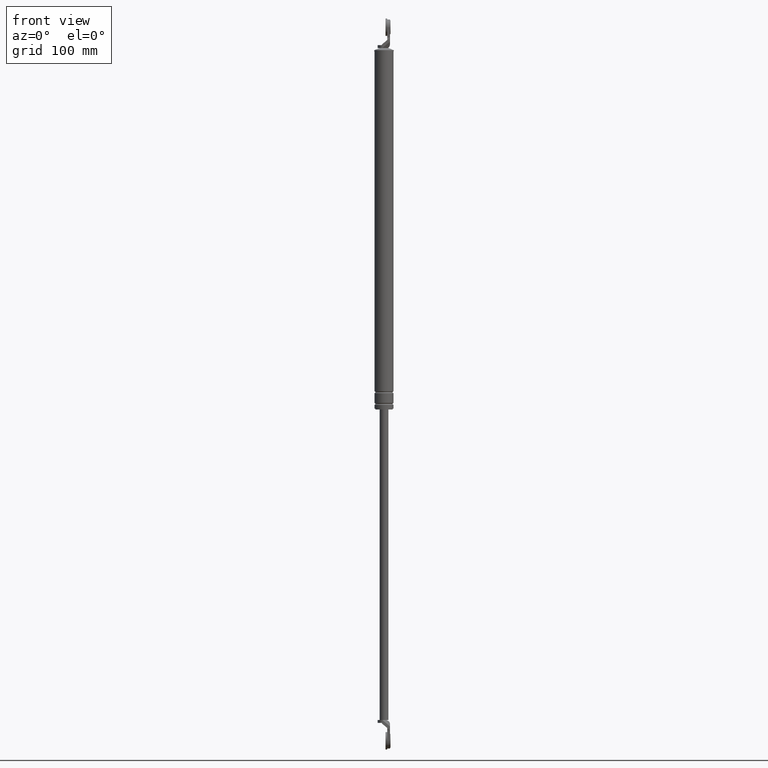
[diagram: clean part render]
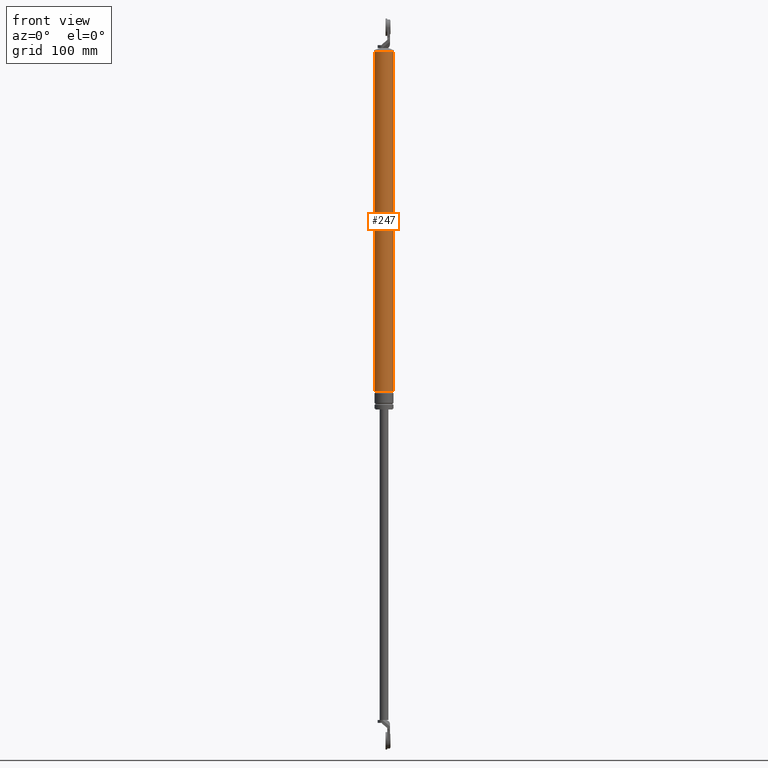
[diagram: same view with one face highlighted and labeled with its STEP entity id]
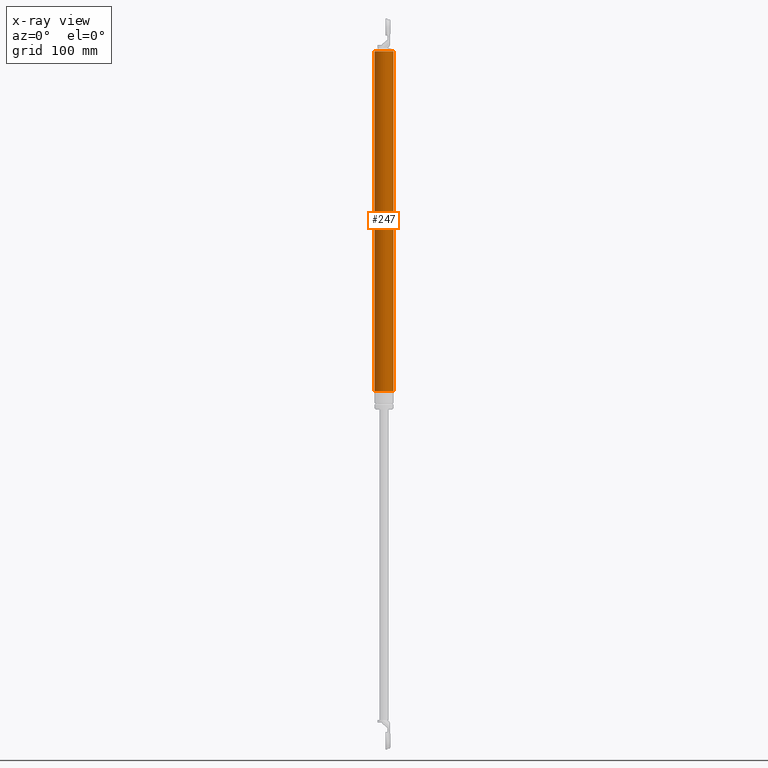
[diagram: x-ray of the same camera — body ghosted, the highlighted face saturated]
A machine part, front view. The second image highlights one B-rep face of the part: STEP entity #247.
The next image is the same camera in x-ray: the body ghosted, the highlighted face saturated — about 0% of this face is hidden behind the body in this view.
In plain terms, the highlighted cylindrical surface (edge-blend (fillet) strip) has radius 11 mm, axis along (0, 0, 1).
Its self-contained STEP definition (entity closure, byte-faithful):
#247=ADVANCED_FACE('',(#727),#726,.T.);
#726=CYLINDRICAL_SURFACE('',#1435,1.10000000000E+001);
#727=FACE_OUTER_BOUND('',#1436,.T.);
#1432=CARTESIAN_POINT('',(0.00000000000E+000,3.58204186421E-014,0.00000000000E+000));
#1433=DIRECTION('',(-0.00000000000E+000,-0.00000000000E+000,1.00000000000E+000));
#1434=DIRECTION('',(1.00000000000E+000,-0.00000000000E+000,-0.00000000000E+000));
#1435=AXIS2_PLACEMENT_3D('',#1432,#1433,#1434);
#1436=EDGE_LOOP('',(#1984,#1985,#1986,#1987));
#1984=ORIENTED_EDGE('',*,*,#2290,.F.);
#1985=ORIENTED_EDGE('',*,*,#2287,.T.);
#1986=ORIENTED_EDGE('',*,*,#2267,.T.);
#1987=ORIENTED_EDGE('',*,*,#2289,.F.);
#2267=EDGE_CURVE('',#2966,#2967,#2968,.T.);
#2287=EDGE_CURVE('',#3096,#2966,#3097,.T.);
#2289=EDGE_CURVE('',#3103,#2967,#3110,.T.);
#2290=EDGE_CURVE('',#3096,#3103,#3116,.T.);
#2966=VERTEX_POINT('',#4077);
#2967=VERTEX_POINT('',#4078);
#2968=CIRCLE('',#4082,1.10000000000E+001);
#3096=VERTEX_POINT('',#4155);
#3097=(BOUNDED_CURVE() B_SPLINE_CURVE(1,(#4156,#4157),.UNSPECIFIED.,.F.,.F.) B_SPLINE_CURVE_WITH_KNOTS((2,2),(2.42130749864E-002,9.75786924953E-001),.UNSPECIFIED.) CURVE() GEOMETRIC_REPRESENTATION_ITEM() RATIONAL_B_SPLINE_CURVE((1.00000000000E+000,1.00000000000E+000)) REPRESENTATION_ITEM('') );
#3103=VERTEX_POINT('',#4158);
#3110=(BOUNDED_CURVE() B_SPLINE_CURVE(1,(#4163,#4164),.UNSPECIFIED.,.F.,.F.) B_SPLINE_CURVE_WITH_KNOTS((2,2),(2.42130750605E-002,9.75786924939E-001),.UNSPECIFIED.) CURVE() GEOMETRIC_REPRESENTATION_ITEM() RATIONAL_B_SPLINE_CURVE((7.50000000000E-001,7.50000000000E-001)) REPRESENTATION_ITEM('') );
#3116=CIRCLE('',#4168,1.10000000000E+001);
#4077=CARTESIAN_POINT('',(1.10000000000E+001,3.61192557345E-014,8.49999850000E+001));
#4078=CARTESIAN_POINT('',(-1.10000000000E+001,3.58204186421E-014,8.49999850000E+001));
#4079=CARTESIAN_POINT('',(0.00000000000E+000,3.58204186421E-014,8.49999850000E+001));
#4080=DIRECTION('',(-0.00000000000E+000,0.00000000000E+000,-1.00000000000E+000));
#4081=DIRECTION('',(-1.00000000000E+000,-1.22460635382E-016,0.00000000000E+000));
#4082=AXIS2_PLACEMENT_3D('',#4079,#4080,#4081);
#4155=CARTESIAN_POINT('',(1.10000000000E+001,3.61192557345E-014,-3.08000015000E+002));
#4156=CARTESIAN_POINT('',(1.10000000000E+001,3.58204186421E-014,-3.08000015031E+002));
#4157=CARTESIAN_POINT('',(1.10000000000E+001,3.58204186421E-014,8.49999850055E+001));
#4158=CARTESIAN_POINT('',(-1.10000000000E+001,3.58204186421E-014,-3.08000015000E+002));
#4163=CARTESIAN_POINT('',(-1.10000000000E+001,3.55271367880E-014,-3.08000015000E+002));
#4164=CARTESIAN_POINT('',(-1.10000000000E+001,3.55271367880E-014,8.49999850000E+001));
#4165=CARTESIAN_POINT('',(0.00000000000E+000,3.58204186421E-014,-3.08000015000E+002));
#4166=DIRECTION('',(-0.00000000000E+000,0.00000000000E+000,-1.00000000000E+000));
#4167=DIRECTION('',(-1.00000000000E+000,-1.22460635382E-016,0.00000000000E+000));
#4168=AXIS2_PLACEMENT_3D('',#4165,#4166,#4167);